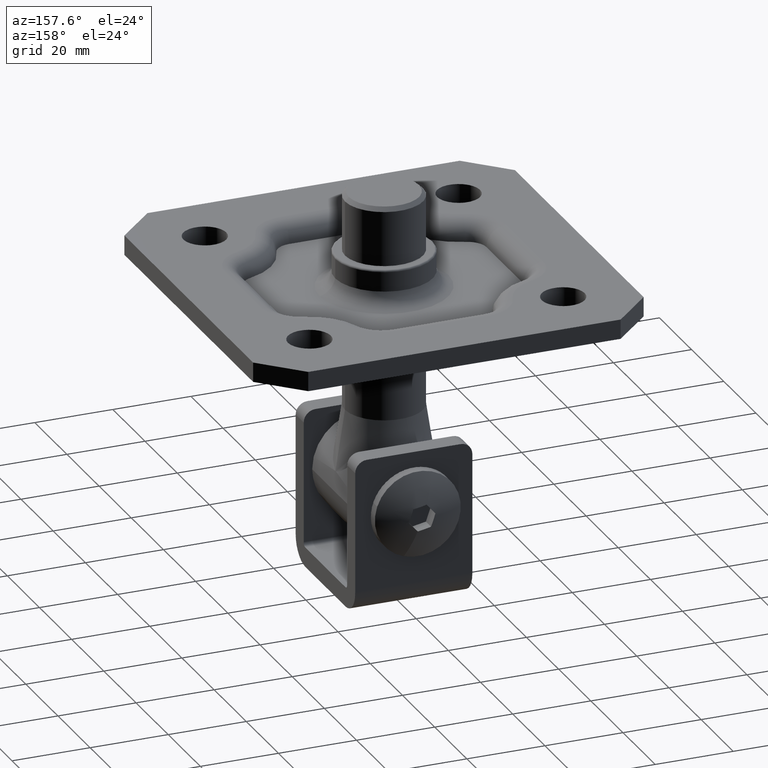
[diagram: clean part render]
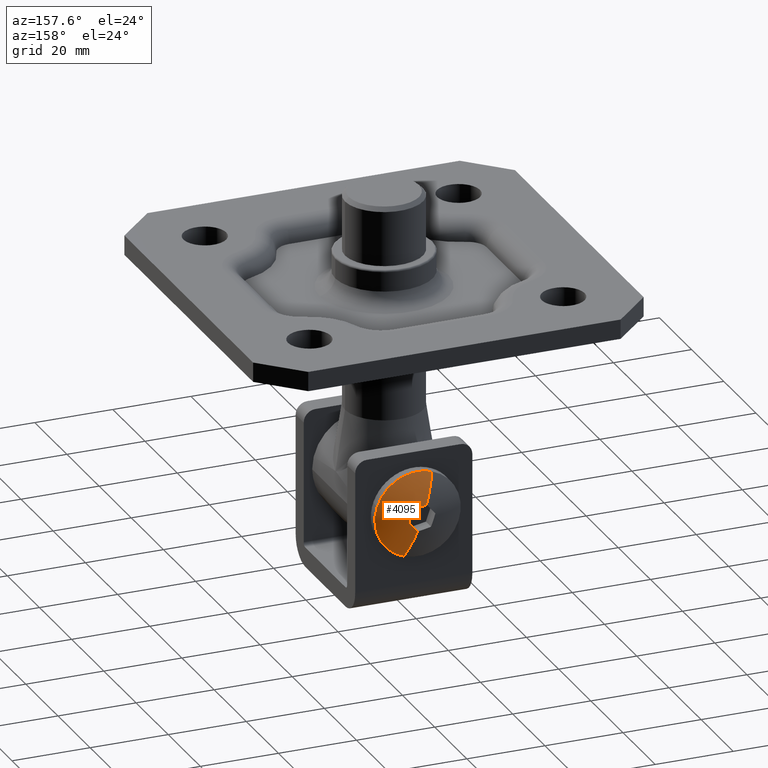
[diagram: same view with one face highlighted and labeled with its STEP entity id]
A machine part, auxiliary view. The second image highlights one B-rep face of the part: STEP entity #4095.
In plain terms, the highlighted spherical surface has radius 21.6667 mm.
Its self-contained STEP definition (entity closure, byte-faithful):
#184 = CARTESIAN_POINT ( 'NONE',  ( 0.0000000000000000000, -1.666666666666661900, 0.0000000000000000000 ) ) ;
#567 = DIRECTION ( 'NONE',  ( -1.000000000000000000, -1.954375996074616700E-014, 2.425285620775119200E-016 ) ) ;
#631 = EDGE_CURVE ( 'NONE', #12052, #11622, #21195, .T. ) ;
#735 = CIRCLE ( 'NONE', #4153, 21.45796925257477000 ) ;
#765 = ORIENTED_EDGE ( 'NONE', *, *, #18656, .F. ) ;
#1209 = VERTEX_POINT ( 'NONE', #17052 ) ;
#1297 = AXIS2_PLACEMENT_3D ( 'NONE', #22229, #11382, #22606 ) ;
#2294 = ORIENTED_EDGE ( 'NONE', *, *, #19796, .F. ) ;
#2889 = AXIS2_PLACEMENT_3D ( 'NONE', #21181, #22912, #8747 ) ;
#3527 = DIRECTION ( 'NONE',  ( -0.0000000000000000000, -1.000000000000000000, -0.0000000000000000000 ) ) ;
#3688 = VERTEX_POINT ( 'NONE', #21034 ) ;
#4095 = ADVANCED_FACE ( 'NONE', ( #15652 ), #13155, .T. ) ;
#4153 = AXIS2_PLACEMENT_3D ( 'NONE', #5353, #10487, #8973 ) ;
#5077 = CARTESIAN_POINT ( 'NONE',  ( 0.0000000000000000000, -1.666666666666661900, 0.0000000000000000000 ) ) ;
#5248 = DIRECTION ( 'NONE',  ( -0.5000000000000000000, -1.954375996074616400E-014, -0.8660254037844386000 ) ) ;
#5353 = CARTESIAN_POINT ( 'NONE',  ( -2.598076211353316500, -1.666666666666661900, -1.500000000000000000 ) ) ;
#5942 = AXIS2_PLACEMENT_3D ( 'NONE', #17481, #23442, #5248 ) ;
#6025 = CIRCLE ( 'NONE', #15143, 21.66666666666666100 ) ;
#7520 = CARTESIAN_POINT ( 'NONE',  ( 0.0000000000000000000, 17.00000000000000000, -10.99999999999999100 ) ) ;
#8048 = ORIENTED_EDGE ( 'NONE', *, *, #631, .F. ) ;
#8372 = CARTESIAN_POINT ( 'NONE',  ( 1.732050807568877200, 19.72128425071773700, -3.000000000000000000 ) ) ;
#8682 = AXIS2_PLACEMENT_3D ( 'NONE', #184, #12814, #9022 ) ;
#8747 = DIRECTION ( 'NONE',  ( 0.0000000000000000000, 0.0000000000000000000, -1.000000000000000000 ) ) ;
#8973 = DIRECTION ( 'NONE',  ( -0.4999999999999999400, -1.954375996074616400E-014, 0.8660254037844386000 ) ) ;
#9022 = DIRECTION ( 'NONE',  ( 1.000000000000000000, 0.0000000000000000000, -1.224646799147353200E-016 ) ) ;
#9063 = VERTEX_POINT ( 'NONE', #8372 ) ;
#9064 = VERTEX_POINT ( 'NONE', #23022 ) ;
#10467 = AXIS2_PLACEMENT_3D ( 'NONE', #22148, #11213, #567 ) ;
#10487 = DIRECTION ( 'NONE',  ( 0.8660254037844387100, 0.0000000000000000000, 0.5000000000000000000 ) ) ;
#10744 = DIRECTION ( 'NONE',  ( 0.0000000000000000000, 0.0000000000000000000, -1.000000000000000000 ) ) ;
#11213 = DIRECTION ( 'NONE',  ( 2.503857664561932400E-016, 0.0000000000000000000, 1.000000000000000000 ) ) ;
#11382 = DIRECTION ( 'NONE',  ( 0.0000000000000000000, 0.0000000000000000000, 1.000000000000000000 ) ) ;
#11580 = ORIENTED_EDGE ( 'NONE', *, *, #14632, .F. ) ;
#11622 = VERTEX_POINT ( 'NONE', #7520 ) ;
#12052 = VERTEX_POINT ( 'NONE', #22051 ) ;
#12715 = CARTESIAN_POINT ( 'NONE',  ( 0.0000000000000000000, 17.00000000000000000, 0.0000000000000000000 ) ) ;
#12814 = DIRECTION ( 'NONE',  ( 1.224646799147353200E-016, -0.0000000000000000000, 1.000000000000000000 ) ) ;
#13155 = SPHERICAL_SURFACE ( 'NONE', #1297, 21.66666666666666100 ) ;
#13950 = CIRCLE ( 'NONE', #10467, 21.45796925257476700 ) ;
#13996 = EDGE_CURVE ( 'NONE', #14889, #9063, #19705, .T. ) ;
#14213 = ORIENTED_EDGE ( 'NONE', *, *, #13996, .F. ) ;
#14632 = EDGE_CURVE ( 'NONE', #9063, #3688, #13950, .T. ) ;
#14889 = VERTEX_POINT ( 'NONE', #16511 ) ;
#15143 = AXIS2_PLACEMENT_3D ( 'NONE', #5077, #15624, #17544 ) ;
#15618 = ORIENTED_EDGE ( 'NONE', *, *, #20042, .F. ) ;
#15624 = DIRECTION ( 'NONE',  ( 0.0000000000000000000, 0.0000000000000000000, -1.000000000000000000 ) ) ;
#15652 = FACE_OUTER_BOUND ( 'NONE', #17599, .T. ) ;
#16511 = CARTESIAN_POINT ( 'NONE',  ( 3.464101615137755700, 19.72128425071773700, 6.505213034913026600E-016 ) ) ;
#16539 = AXIS2_PLACEMENT_3D ( 'NONE', #12715, #3527, #10744 ) ;
#16918 = ORIENTED_EDGE ( 'NONE', *, *, #17177, .T. ) ;
#17052 = CARTESIAN_POINT ( 'NONE',  ( 10.99999999999999100, 17.00000000000000400, 0.0000000000000000000 ) ) ;
#17177 = EDGE_CURVE ( 'NONE', #14889, #1209, #6025, .T. ) ;
#17481 = CARTESIAN_POINT ( 'NONE',  ( 2.598076211353316000, -1.666666666666661900, -1.500000000000000400 ) ) ;
#17544 = DIRECTION ( 'NONE',  ( -1.000000000000000000, 0.0000000000000000000, 0.0000000000000000000 ) ) ;
#17599 = EDGE_LOOP ( 'NONE', ( #15618, #2294, #11580, #14213, #16918, #765, #8048 ) ) ;
#18656 = EDGE_CURVE ( 'NONE', #11622, #1209, #19454, .T. ) ;
#19373 = CIRCLE ( 'NONE', #8682, 21.66666666666666100 ) ;
#19454 = CIRCLE ( 'NONE', #16539, 10.99999999999999100 ) ;
#19705 = CIRCLE ( 'NONE', #5942, 21.45796925257477000 ) ;
#19796 = EDGE_CURVE ( 'NONE', #3688, #9064, #735, .T. ) ;
#20042 = EDGE_CURVE ( 'NONE', #9064, #12052, #19373, .T. ) ;
#21034 = CARTESIAN_POINT ( 'NONE',  ( -1.732050807568877400, 19.72128425071773700, -2.999999999999999100 ) ) ;
#21181 = CARTESIAN_POINT ( 'NONE',  ( 0.0000000000000000000, 17.00000000000000000, 0.0000000000000000000 ) ) ;
#21195 = CIRCLE ( 'NONE', #2889, 10.99999999999999100 ) ;
#22051 = CARTESIAN_POINT ( 'NONE',  ( -10.99999999999999100, 17.00000000000000400, 1.347111479062087400E-015 ) ) ;
#22148 = CARTESIAN_POINT ( 'NONE',  ( -7.511572993685796100E-016, -1.666666666666661900, -2.999999999999999600 ) ) ;
#22229 = CARTESIAN_POINT ( 'NONE',  ( 0.0000000000000000000, -1.666666666666661900, 0.0000000000000000000 ) ) ;
#22606 = DIRECTION ( 'NONE',  ( 1.000000000000000000, 0.0000000000000000000, 0.0000000000000000000 ) ) ;
#22912 = DIRECTION ( 'NONE',  ( -0.0000000000000000000, -1.000000000000000000, -0.0000000000000000000 ) ) ;
#23022 = CARTESIAN_POINT ( 'NONE',  ( -3.464101615137754800, 19.72128425071773700, -6.505213034913026600E-016 ) ) ;
#23442 = DIRECTION ( 'NONE',  ( -0.8660254037844386000, -0.0000000000000000000, 0.5000000000000001100 ) ) ;